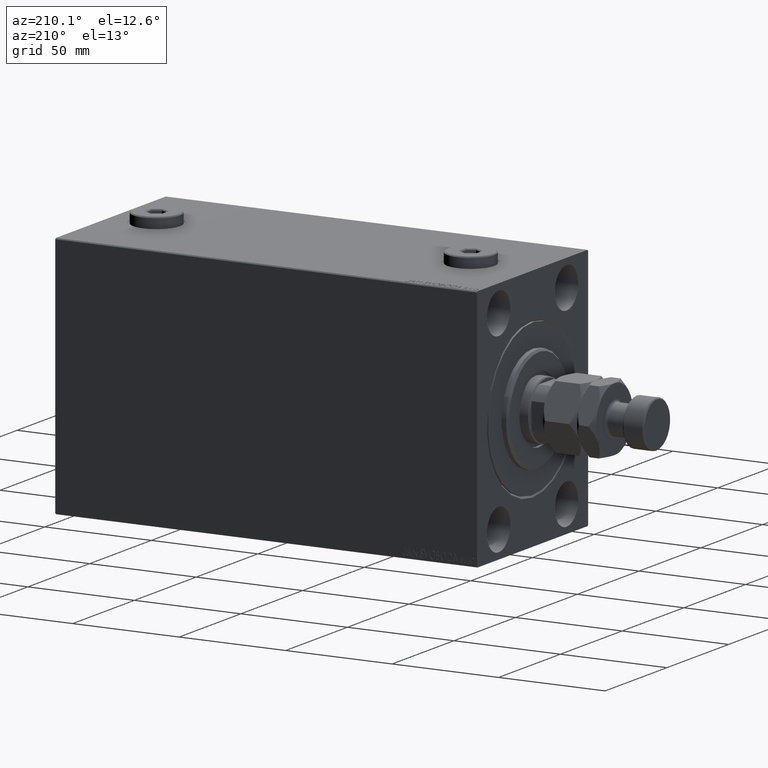
[diagram: clean part render]
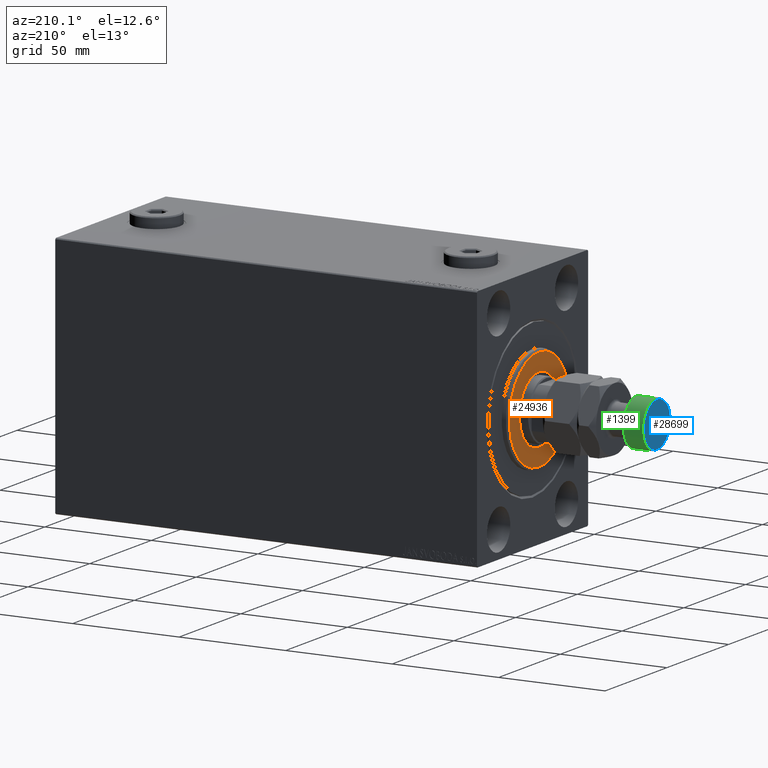
[diagram: same view with three faces highlighted in distinct colors, each labeled with its STEP entity id]
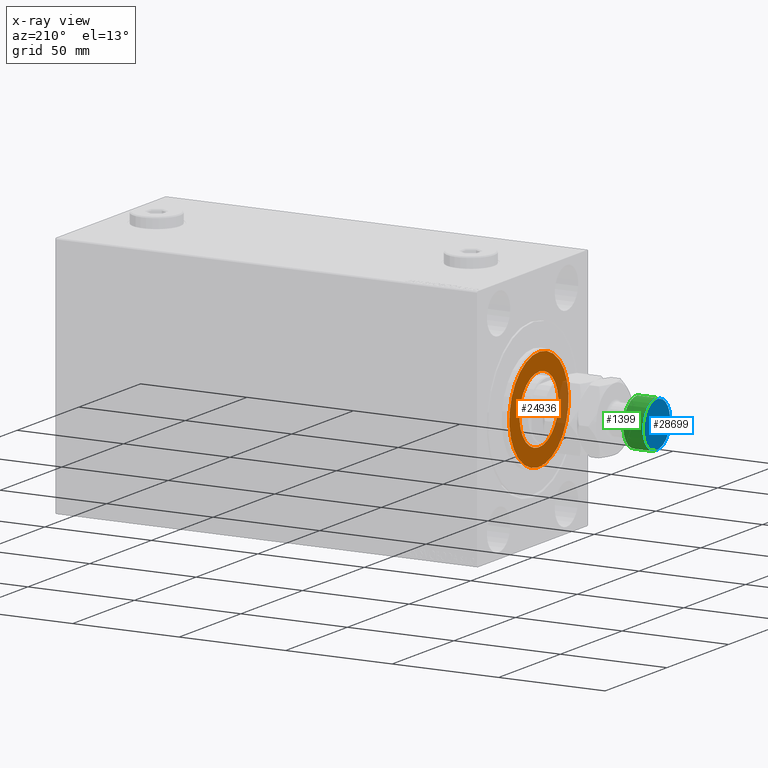
[diagram: x-ray of the same camera — body ghosted, the three highlighted faces saturated]
A machine part, auxiliary view with three faces highlighted in distinct colors.
The next image is the same camera in x-ray (body ghosted, the three faces saturated) — at least one of them is partly hidden behind the body in this view.
Their STEP definitions:

[orange] entity #24936 — the highlighted planar face has unit normal (-1, 0, 0).
#704 = CARTESIAN_POINT ( 'NONE',  ( 3.000000000000000000, 0.000000000000000000, 0.000000000000000000 ) ) ;
#2644 = AXIS2_PLACEMENT_3D ( 'NONE', #23922, #45810, #27960 ) ;
#2896 = CARTESIAN_POINT ( 'NONE',  ( 3.000000000000000000, 0.000000000000000000, 0.000000000000000000 ) ) ;
#3219 = ORIENTED_EDGE ( 'NONE', *, *, #28323, .T. ) ;
#3308 = VERTEX_POINT ( 'NONE', #31489 ) ;
#3405 = EDGE_CURVE ( 'NONE', #3614, #39562, #20156, .T. ) ;
#3614 = VERTEX_POINT ( 'NONE', #16930 ) ;
#3947 = EDGE_LOOP ( 'NONE', ( #25248, #11061 ) ) ;
#5477 = EDGE_CURVE ( 'NONE', #20871, #3308, #14167, .T. ) ;
#6208 = FACE_OUTER_BOUND ( 'NONE', #30139, .T. ) ;
#6445 = PLANE ( 'NONE',  #8113 ) ;
#7312 = DIRECTION ( 'NONE',  ( 1.000000000000000000, -0.000000000000000000, 0.000000000000000000 ) ) ;
#7900 = CARTESIAN_POINT ( 'NONE',  ( 3.000000000000000000, 0.000000000000000000, 15.75000000000000000 ) ) ;
#8113 = AXIS2_PLACEMENT_3D ( 'NONE', #2896, #13797, #10235 ) ;
#10235 = DIRECTION ( 'NONE',  ( 0.000000000000000000, 0.000000000000000000, -1.000000000000000000 ) ) ;
#10571 = DIRECTION ( 'NONE',  ( -1.000000000000000000, 0.000000000000000000, -0.000000000000000000 ) ) ;
#11061 = ORIENTED_EDGE ( 'NONE', *, *, #3405, .T. ) ;
#11997 = CIRCLE ( 'NONE', #39329, 24.00000000000000711 ) ;
#13797 = DIRECTION ( 'NONE',  ( 1.000000000000000000, -0.000000000000000000, 0.000000000000000000 ) ) ;
#14167 = CIRCLE ( 'NONE', #36935, 24.00000000000000711 ) ;
#14499 = DIRECTION ( 'NONE',  ( 0.000000000000000000, 0.000000000000000000, -1.000000000000000000 ) ) ;
#16284 = CIRCLE ( 'NONE', #2644, 15.75000000000000000 ) ;
#16930 = CARTESIAN_POINT ( 'NONE',  ( 3.000000000000000000, 1.928818708657080950E-15, -15.75000000000000000 ) ) ;
#19080 = EDGE_CURVE ( 'NONE', #39562, #3614, #16284, .T. ) ;
#20156 = CIRCLE ( 'NONE', #46756, 15.75000000000000000 ) ;
#20682 = FACE_BOUND ( 'NONE', #3947, .T. ) ;
#20871 = VERTEX_POINT ( 'NONE', #26841 ) ;
#21093 = CARTESIAN_POINT ( 'NONE',  ( 3.000000000000000000, 0.000000000000000000, 0.000000000000000000 ) ) ;
#23922 = CARTESIAN_POINT ( 'NONE',  ( 3.000000000000000000, 0.000000000000000000, 0.000000000000000000 ) ) ;
#24936 = ADVANCED_FACE ( 'NONE', ( #6208, #20682 ), #6445, .T. ) ;
#25248 = ORIENTED_EDGE ( 'NONE', *, *, #19080, .T. ) ;
#26841 = CARTESIAN_POINT ( 'NONE',  ( 3.000000000000000000, 0.000000000000000000, 24.00000000000000711 ) ) ;
#27960 = DIRECTION ( 'NONE',  ( 0.000000000000000000, 0.000000000000000000, -1.000000000000000000 ) ) ;
#28323 = EDGE_CURVE ( 'NONE', #3308, #20871, #11997, .T. ) ;
#30139 = EDGE_LOOP ( 'NONE', ( #42268, #3219 ) ) ;
#31489 = CARTESIAN_POINT ( 'NONE',  ( 3.000000000000000000, 3.000384657911015469E-15, -24.00000000000000711 ) ) ;
#36798 = DIRECTION ( 'NONE',  ( 1.000000000000000000, -0.000000000000000000, 0.000000000000000000 ) ) ;
#36935 = AXIS2_PLACEMENT_3D ( 'NONE', #21093, #7312, #39623 ) ;
#39325 = CARTESIAN_POINT ( 'NONE',  ( 3.000000000000000000, 0.000000000000000000, 0.000000000000000000 ) ) ;
#39329 = AXIS2_PLACEMENT_3D ( 'NONE', #704, #36798, #14499 ) ;
#39562 = VERTEX_POINT ( 'NONE', #7900 ) ;
#39623 = DIRECTION ( 'NONE',  ( 0.000000000000000000, 0.000000000000000000, -1.000000000000000000 ) ) ;
#42268 = ORIENTED_EDGE ( 'NONE', *, *, #5477, .T. ) ;
#44061 = DIRECTION ( 'NONE',  ( 0.000000000000000000, 0.000000000000000000, -1.000000000000000000 ) ) ;
#45810 = DIRECTION ( 'NONE',  ( -1.000000000000000000, 0.000000000000000000, -0.000000000000000000 ) ) ;
#46756 = AXIS2_PLACEMENT_3D ( 'NONE', #39325, #10571, #44061 ) ;

[blue] entity #28699 — the highlighted planar face has unit normal (-1, 0, 0).
#366 = ORIENTED_EDGE ( 'NONE', *, *, #28447, .T. ) ;
#1131 = VERTEX_POINT ( 'NONE', #15881 ) ;
#1351 = PLANE ( 'NONE',  #3689 ) ;
#3566 = CIRCLE ( 'NONE', #30072, 10.50000000000000178 ) ;
#3689 = AXIS2_PLACEMENT_3D ( 'NONE', #8475, #8008, #8247 ) ;
#4877 = EDGE_CURVE ( 'NONE', #20237, #1131, #3566, .T. ) ;
#8008 = DIRECTION ( 'NONE',  ( 0.000000000000000000, 0.000000000000000000, 1.000000000000000000 ) ) ;
#8247 = DIRECTION ( 'NONE',  ( 1.000000000000000000, 0.000000000000000000, -0.000000000000000000 ) ) ;
#8475 = CARTESIAN_POINT ( 'NONE',  ( 0.000000000000000000, 0.000000000000000000, 45.00000000000000711 ) ) ;
#12481 = EDGE_LOOP ( 'NONE', ( #36877, #366 ) ) ;
#14709 = DIRECTION ( 'NONE',  ( 0.000000000000000000, 0.000000000000000000, 1.000000000000000000 ) ) ;
#15881 = CARTESIAN_POINT ( 'NONE',  ( 10.50000000000000178, 1.316495309083404815E-15, 45.00000000000000711 ) ) ;
#20237 = VERTEX_POINT ( 'NONE', #38729 ) ;
#20356 = AXIS2_PLACEMENT_3D ( 'NONE', #31572, #20869, #31108 ) ;
#20869 = DIRECTION ( 'NONE',  ( 0.000000000000000000, 0.000000000000000000, 1.000000000000000000 ) ) ;
#25169 = CARTESIAN_POINT ( 'NONE',  ( 0.000000000000000000, 0.000000000000000000, 45.00000000000000711 ) ) ;
#27948 = CIRCLE ( 'NONE', #20356, 10.50000000000000178 ) ;
#28447 = EDGE_CURVE ( 'NONE', #1131, #20237, #27948, .T. ) ;
#28699 = ADVANCED_FACE ( 'NONE', ( #44836 ), #1351, .T. ) ;
#30072 = AXIS2_PLACEMENT_3D ( 'NONE', #25169, #14709, #43487 ) ;
#31108 = DIRECTION ( 'NONE',  ( 1.000000000000000000, 0.000000000000000000, 0.000000000000000000 ) ) ;
#31572 = CARTESIAN_POINT ( 'NONE',  ( 0.000000000000000000, 0.000000000000000000, 45.00000000000000711 ) ) ;
#36877 = ORIENTED_EDGE ( 'NONE', *, *, #4877, .T. ) ;
#38729 = CARTESIAN_POINT ( 'NONE',  ( -10.50000000000000178, 0.000000000000000000, 45.00000000000000711 ) ) ;
#43487 = DIRECTION ( 'NONE',  ( 1.000000000000000000, 0.000000000000000000, 0.000000000000000000 ) ) ;
#44836 = FACE_OUTER_BOUND ( 'NONE', #12481, .T. ) ;

[green] entity #1399 — the highlighted cylindrical surface (edge-blend (fillet) strip) has radius 11 mm, axis along (1, -0, -0).
#233 = CARTESIAN_POINT ( 'NONE',  ( -11.00000000000000000, 0.000000000000000000, 45.00000000000000711 ) ) ;
#842 = EDGE_CURVE ( 'NONE', #20245, #39631, #14797, .T. ) ;
#1036 = AXIS2_PLACEMENT_3D ( 'NONE', #2564, #6128, #19888 ) ;
#1399 = ADVANCED_FACE ( 'NONE', ( #9171 ), #37676, .T. ) ;
#1712 = CARTESIAN_POINT ( 'NONE',  ( 11.00000000000000000, 1.347111479062088405E-15, 44.50000000000001421 ) ) ;
#2564 = CARTESIAN_POINT ( 'NONE',  ( 0.000000000000000000, 0.000000000000000000, 35.50000000000001421 ) ) ;
#2718 = AXIS2_PLACEMENT_3D ( 'NONE', #27691, #5376, #31033 ) ;
#3420 = LINE ( 'NONE', #24544, #10523 ) ;
#5260 = DIRECTION ( 'NONE',  ( 1.000000000000000000, 0.000000000000000000, 0.000000000000000000 ) ) ;
#5376 = DIRECTION ( 'NONE',  ( -0.000000000000000000, -0.000000000000000000, -1.000000000000000000 ) ) ;
#6128 = DIRECTION ( 'NONE',  ( -0.000000000000000000, -0.000000000000000000, 1.000000000000000000 ) ) ;
#8346 = DIRECTION ( 'NONE',  ( 0.000000000000000000, 0.000000000000000000, -1.000000000000000000 ) ) ;
#9171 = FACE_OUTER_BOUND ( 'NONE', #12548, .T. ) ;
#10347 = CARTESIAN_POINT ( 'NONE',  ( 11.00000000000000000, 1.347111479062088405E-15, 35.50000000000001421 ) ) ;
#10523 = VECTOR ( 'NONE', #35724, 1000.000000000000000 ) ;
#11377 = LINE ( 'NONE', #233, #33942 ) ;
#12548 = EDGE_LOOP ( 'NONE', ( #20589, #25422, #38664, #16709 ) ) ;
#14797 = CIRCLE ( 'NONE', #16292, 11.00000000000000000 ) ;
#15459 = CARTESIAN_POINT ( 'NONE',  ( 0.000000000000000000, 0.000000000000000000, 44.50000000000001421 ) ) ;
#16292 = AXIS2_PLACEMENT_3D ( 'NONE', #15459, #8346, #5260 ) ;
#16709 = ORIENTED_EDGE ( 'NONE', *, *, #27301, .F. ) ;
#19888 = DIRECTION ( 'NONE',  ( 1.000000000000000000, 0.000000000000000000, 0.000000000000000000 ) ) ;
#20245 = VERTEX_POINT ( 'NONE', #28025 ) ;
#20589 = ORIENTED_EDGE ( 'NONE', *, *, #842, .T. ) ;
#24325 = VERTEX_POINT ( 'NONE', #10347 ) ;
#24544 = CARTESIAN_POINT ( 'NONE',  ( 11.00000000000000000, 1.347111479062088405E-15, 45.00000000000000711 ) ) ;
#25422 = ORIENTED_EDGE ( 'NONE', *, *, #32578, .T. ) ;
#27301 = EDGE_CURVE ( 'NONE', #20245, #30912, #11377, .T. ) ;
#27691 = CARTESIAN_POINT ( 'NONE',  ( 0.000000000000000000, 0.000000000000000000, 45.00000000000000711 ) ) ;
#28025 = CARTESIAN_POINT ( 'NONE',  ( -11.00000000000000000, 0.000000000000000000, 44.50000000000001421 ) ) ;
#30912 = VERTEX_POINT ( 'NONE', #34089 ) ;
#31033 = DIRECTION ( 'NONE',  ( -1.000000000000000000, 0.000000000000000000, 0.000000000000000000 ) ) ;
#32578 = EDGE_CURVE ( 'NONE', #39631, #24325, #3420, .T. ) ;
#32889 = CIRCLE ( 'NONE', #1036, 11.00000000000000000 ) ;
#33942 = VECTOR ( 'NONE', #36336, 1000.000000000000000 ) ;
#34089 = CARTESIAN_POINT ( 'NONE',  ( -11.00000000000000000, 0.000000000000000000, 35.50000000000001421 ) ) ;
#35724 = DIRECTION ( 'NONE',  ( -0.000000000000000000, -0.000000000000000000, -1.000000000000000000 ) ) ;
#36336 = DIRECTION ( 'NONE',  ( -0.000000000000000000, -0.000000000000000000, -1.000000000000000000 ) ) ;
#37676 = CYLINDRICAL_SURFACE ( 'NONE', #2718, 11.00000000000000000 ) ;
#38664 = ORIENTED_EDGE ( 'NONE', *, *, #40926, .T. ) ;
#39631 = VERTEX_POINT ( 'NONE', #1712 ) ;
#40926 = EDGE_CURVE ( 'NONE', #24325, #30912, #32889, .T. ) ;